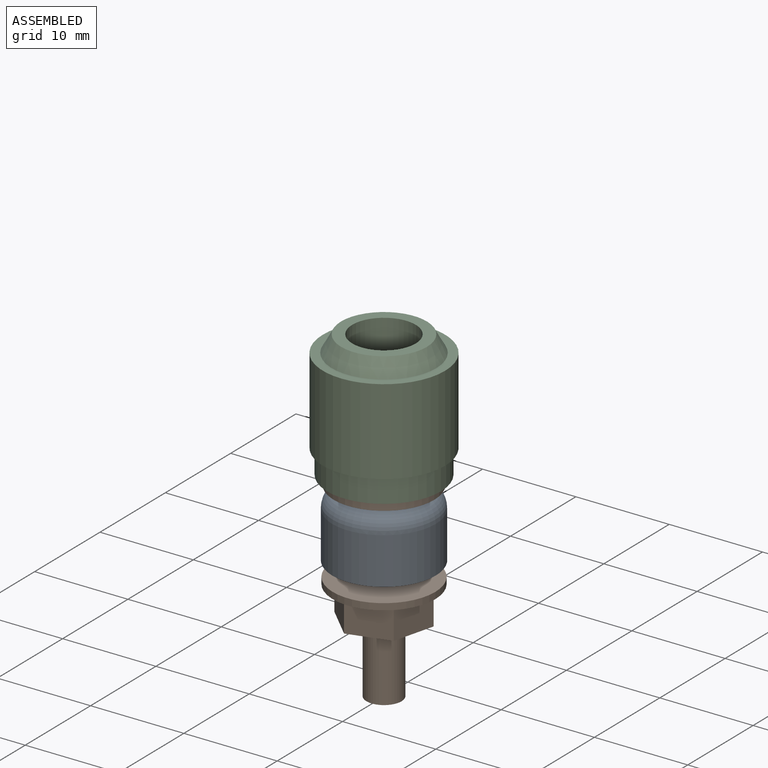
[diagram: assembled view]
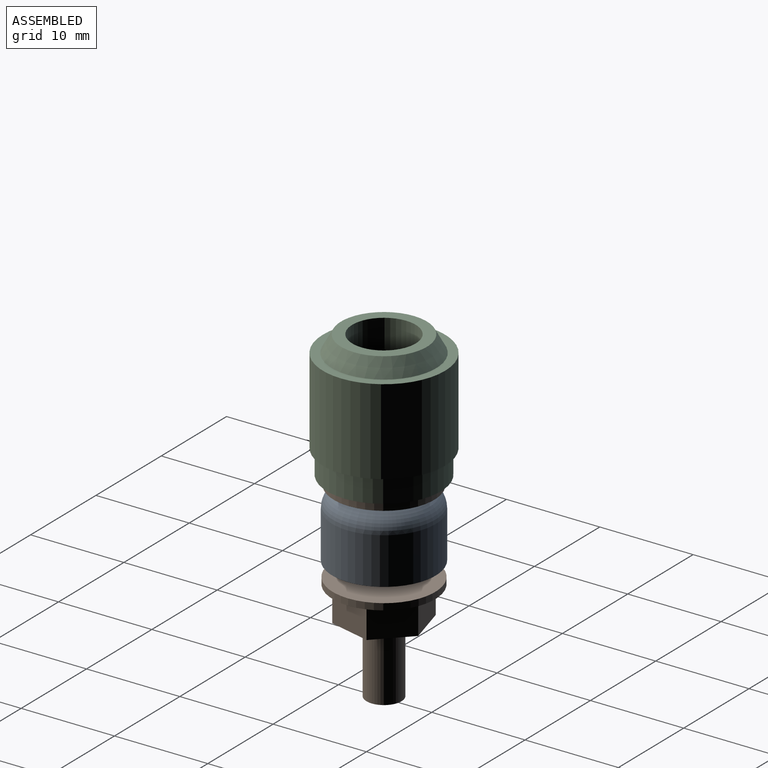
[diagram: assembled view, second angle]
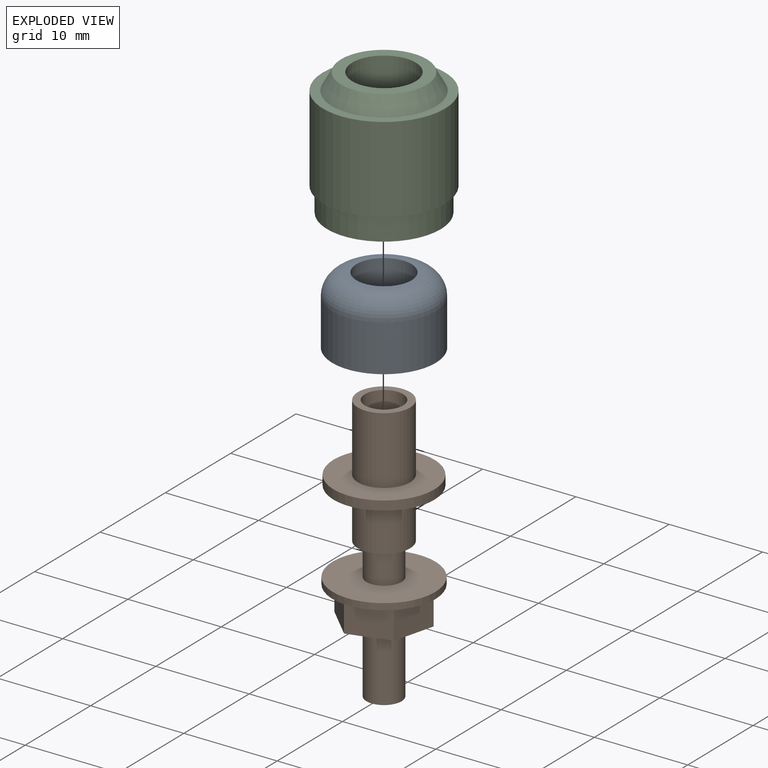
[diagram: exploded view]
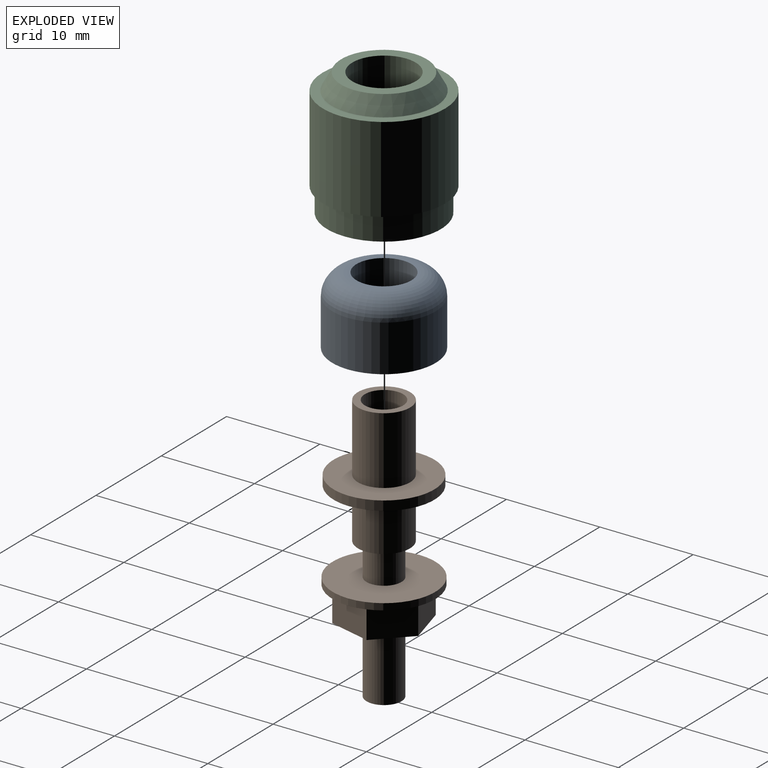
[diagram: exploded view, second angle]
ASSEMBLY  parts=3 mates=2
PART A: 5 faces, bbox 12x12x7.3 mm
  f0: plane 11.1x11.1mm, normal (0,0,-1), area 69.4mm2, adj f1,f4
  f1: cylinder r=5.55mm len=11.1mm, axis (0,0,-1), area 174.4mm2, adj f0,f2
  f2: torus R=3.25mm, axis (0,0,-1), area 107mm2, adj f1,f3
  f3: plane 6.5x6.5mm, normal (0,0,1), area 5.8mm2, adj f2,f4
  f4: cylinder r=2.95mm len=7.3mm, axis (0,0,-1), area 135.3mm2, adj f0,f3
PART B: 22 faces, bbox 11x11x28.7 mm
  f0: plane 11x11mm, normal (0,0,-1), area 39.6mm2, adj f1,f13,f14,f15,f16,f17,f18
  f1: cylinder r=5.5mm len=11mm, axis (0,0,-1), area 24.2mm2, adj f0,f2
  f2: plane 11x11mm, normal (0,0,1), area 83.9mm2, adj f1,f3
  f3: cylinder r=1.88mm len=3.76mm, axis (0,0,-1), area 41.3mm2, adj f2,f4
  f4: plane 5.6x5.6mm, normal (0,0,-1), area 13.5mm2, adj f3,f5
  f5: cylinder r=2.8mm len=5.6mm, axis (0,0,-1), area 95mm2, adj f4,f6
  f6: plane 10.8x10.8mm, normal (0,0,-1), area 67mm2, adj f5,f7
  f7: cylinder r=5.4mm len=10.8mm, axis (0,0,-1), area 33.9mm2, adj f6,f8
  f8: plane 10.8x10.8mm, normal (0,0,1), area 67mm2, adj f7,f9
  f9: cylinder r=2.8mm len=7.24mm, axis (0,0,-1), area 127.4mm2, adj f8,f10
  f10: plane 5.6x5.6mm, normal (0,0,1), area 11.4mm2, adj f9,f11
  f11: cylinder r=2.05mm len=12mm, axis (0,0,-1), area 154.6mm2, adj f10,f12
  f12: plane 4.1x4.1mm, normal (0,0,1), area 13.2mm2, adj f11
  f13: plane 4.47x3.4mm, normal (0.97,-0.25,0), area 15.7mm2, adj f0,f14,f18,f19
  f14: plane 4.45x3.4mm, normal (0.27,-0.96,0), area 15.7mm2, adj f0,f13,f15,f19
  f15: plane 3.4x3.3mm, normal (-0.7,-0.71,0), area 15.7mm2, adj f0,f14,f16,f19
  f16: plane 4.47x3.4mm, normal (-0.97,0.25,0), area 15.7mm2, adj f0,f15,f17,f19
  f17: plane 4.45x3.4mm, normal (-0.27,0.96,0), area 15.7mm2, adj f0,f16,f18,f19
  f18: plane 3.4x3.3mm, normal (0.7,0.71,0), area 15.7mm2, adj f0,f13,f17,f19
  f19: plane 8.95x8.9mm, normal (0,0,-1), area 44.3mm2, adj f13,f14,f15,f16,f17,f18,f21
  f20: plane 3.76x3.76mm, normal (0,0,-1), area 11.1mm2, adj f21
  f21: cylinder r=1.88mm len=7.46mm, axis (0,0,-1), area 88.1mm2, adj f19,f20
PART C: 8 faces, bbox 13.1x13.1x13.6 mm
  f0: cylinder r=3.4mm len=13.6mm, axis (0,0,-1), area 290.5mm2, adj f1,f7
  f1: plane 12.2x12.2mm, normal (0,0,-1), area 80.6mm2, adj f0,f2
  f2: cylinder r=6.1mm len=12.2mm, axis (0,0,-1), area 99.7mm2, adj f1,f3
  f3: plane 13.1x13.1mm, normal (0,0,-1), area 17.9mm2, adj f2,f4
  f4: cylinder r=6.55mm len=13.1mm, axis (0,0,-1), area 378.6mm2, adj f3,f5
  f5: plane 13.1x13.1mm, normal (0,0,1), area 36.3mm2, adj f4,f6
  f6: cone r=4.6mm half-angle=29.1deg, axis (0,0,-1), area 66mm2, adj f5,f7
  f7: plane 9.2x9.2mm, normal (0,0,1), area 30.2mm2, adj f0,f6
PLACE A t=(10.69,5.37,-1.06)mm
PLACE B t=(10.69,5.37,-1.06)mm
PLACE C t=(10.69,5.37,7.24)mm
MATE fastened C.f0 <-> B.f1  axis (0,0,-1) through (10.69,5.37,7.24)mm
MATE fastened B.f1 <-> A.f1  axis (0,0,-1) through (10.69,5.37,6.24)mm
